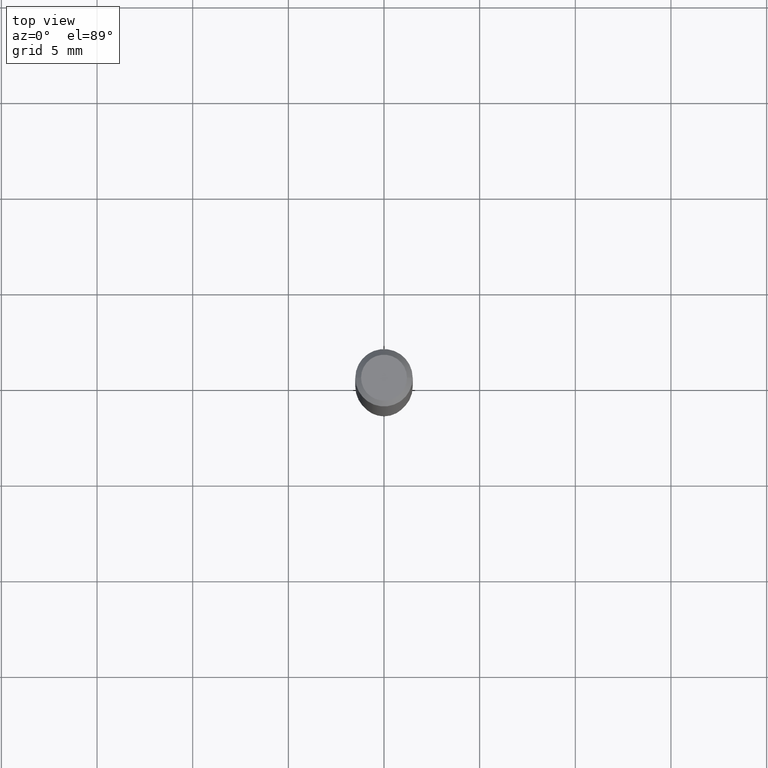
[diagram: clean part render]
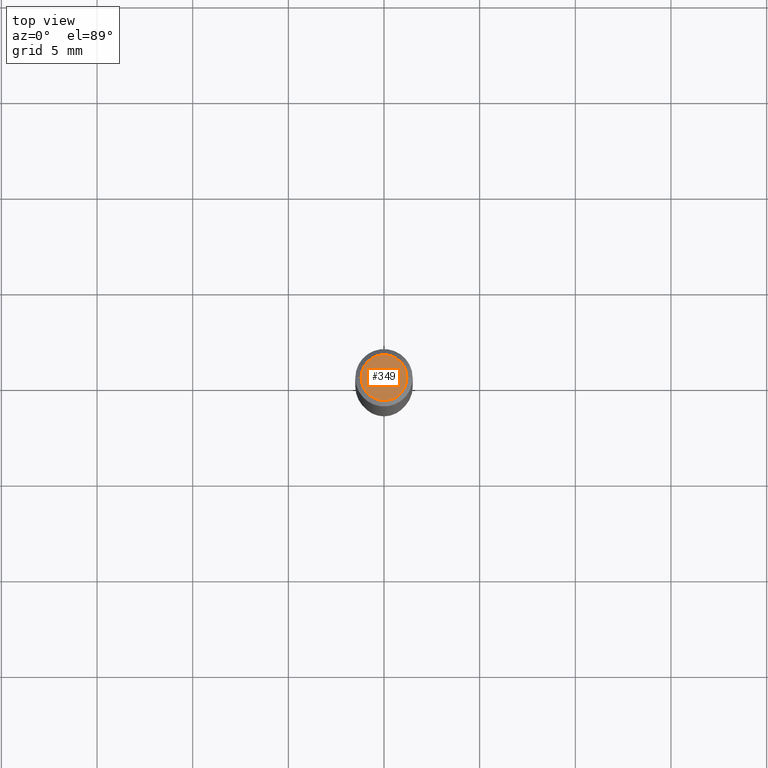
[diagram: same view with one face highlighted and labeled with its STEP entity id]
A machine part, top view. The second image highlights one B-rep face of the part: STEP entity #349.
In plain terms, the highlighted planar face has unit normal (0, -0, -1).
Its self-contained STEP definition (entity closure, byte-faithful):
#5 = CIRCLE ( 'NONE', #366, 0.04724000000000000421 ) ;
#42 = DIRECTION ( 'NONE',  ( 1.000000000000000000, -6.982962677686266711E-15, 4.876185090822587894E-29 ) ) ;
#50 = DIRECTION ( 'NONE',  ( 1.000000000000000000, -6.982962677686266711E-15, 4.876185090822587894E-29 ) ) ;
#60 = DIRECTION ( 'NONE',  ( -1.000000000000000000, 6.982962677686265922E-15, -4.876176775795935793E-29 ) ) ;
#75 = AXIS2_PLACEMENT_3D ( 'NONE', #137, #287, #50 ) ;
#104 = DIRECTION ( 'NONE',  ( 2.438088387897960049E-29, -3.491481338843145188E-15, -1.000000000000000000 ) ) ;
#134 = FACE_OUTER_BOUND ( 'NONE', #373, .T. ) ;
#137 = CARTESIAN_POINT ( 'NONE',  ( 8.265746106709734507E-48, -1.180129479067563789E-33, -3.380025165646692144E-19 ) ) ;
#176 = VERTEX_POINT ( 'NONE', #277 ) ;
#179 = ORIENTED_EDGE ( 'NONE', *, *, #315, .T. ) ;
#190 = CARTESIAN_POINT ( 'NONE',  ( 8.265746106709734507E-48, -1.180129479067563789E-33, -3.380025165646692144E-19 ) ) ;
#256 = PLANE ( 'NONE',  #301 ) ;
#258 = CIRCLE ( 'NONE', #75, 0.04724000000000000421 ) ;
#277 = CARTESIAN_POINT ( 'NONE',  ( -0.04724000000000000421, 3.504923541997677355E-16, -3.380025165670481712E-19 ) ) ;
#287 = DIRECTION ( 'NONE',  ( -2.445468806185136597E-29, 3.491481338843145583E-15, 1.000000000000000000 ) ) ;
#296 = CARTESIAN_POINT ( 'NONE',  ( 4.132873053354867254E-48, -5.900647395337818946E-34, -1.690012582823346072E-19 ) ) ;
#301 = AXIS2_PLACEMENT_3D ( 'NONE', #296, #104, #60 ) ;
#315 = EDGE_CURVE ( 'NONE', #176, #447, #5, .T. ) ;
#349 = ADVANCED_FACE ( 'NONE', ( #134 ), #256, .F. ) ;
#360 = ORIENTED_EDGE ( 'NONE', *, *, #469, .T. ) ;
#366 = AXIS2_PLACEMENT_3D ( 'NONE', #190, #484, #42 ) ;
#373 = EDGE_LOOP ( 'NONE', ( #179, #360 ) ) ;
#444 = CARTESIAN_POINT ( 'NONE',  ( 0.04724000000000000421, -3.852183633974369345E-16, -3.380025165621689721E-19 ) ) ;
#447 = VERTEX_POINT ( 'NONE', #444 ) ;
#469 = EDGE_CURVE ( 'NONE', #447, #176, #258, .T. ) ;
#484 = DIRECTION ( 'NONE',  ( -2.445468806185136597E-29, 3.491481338843145583E-15, 1.000000000000000000 ) ) ;